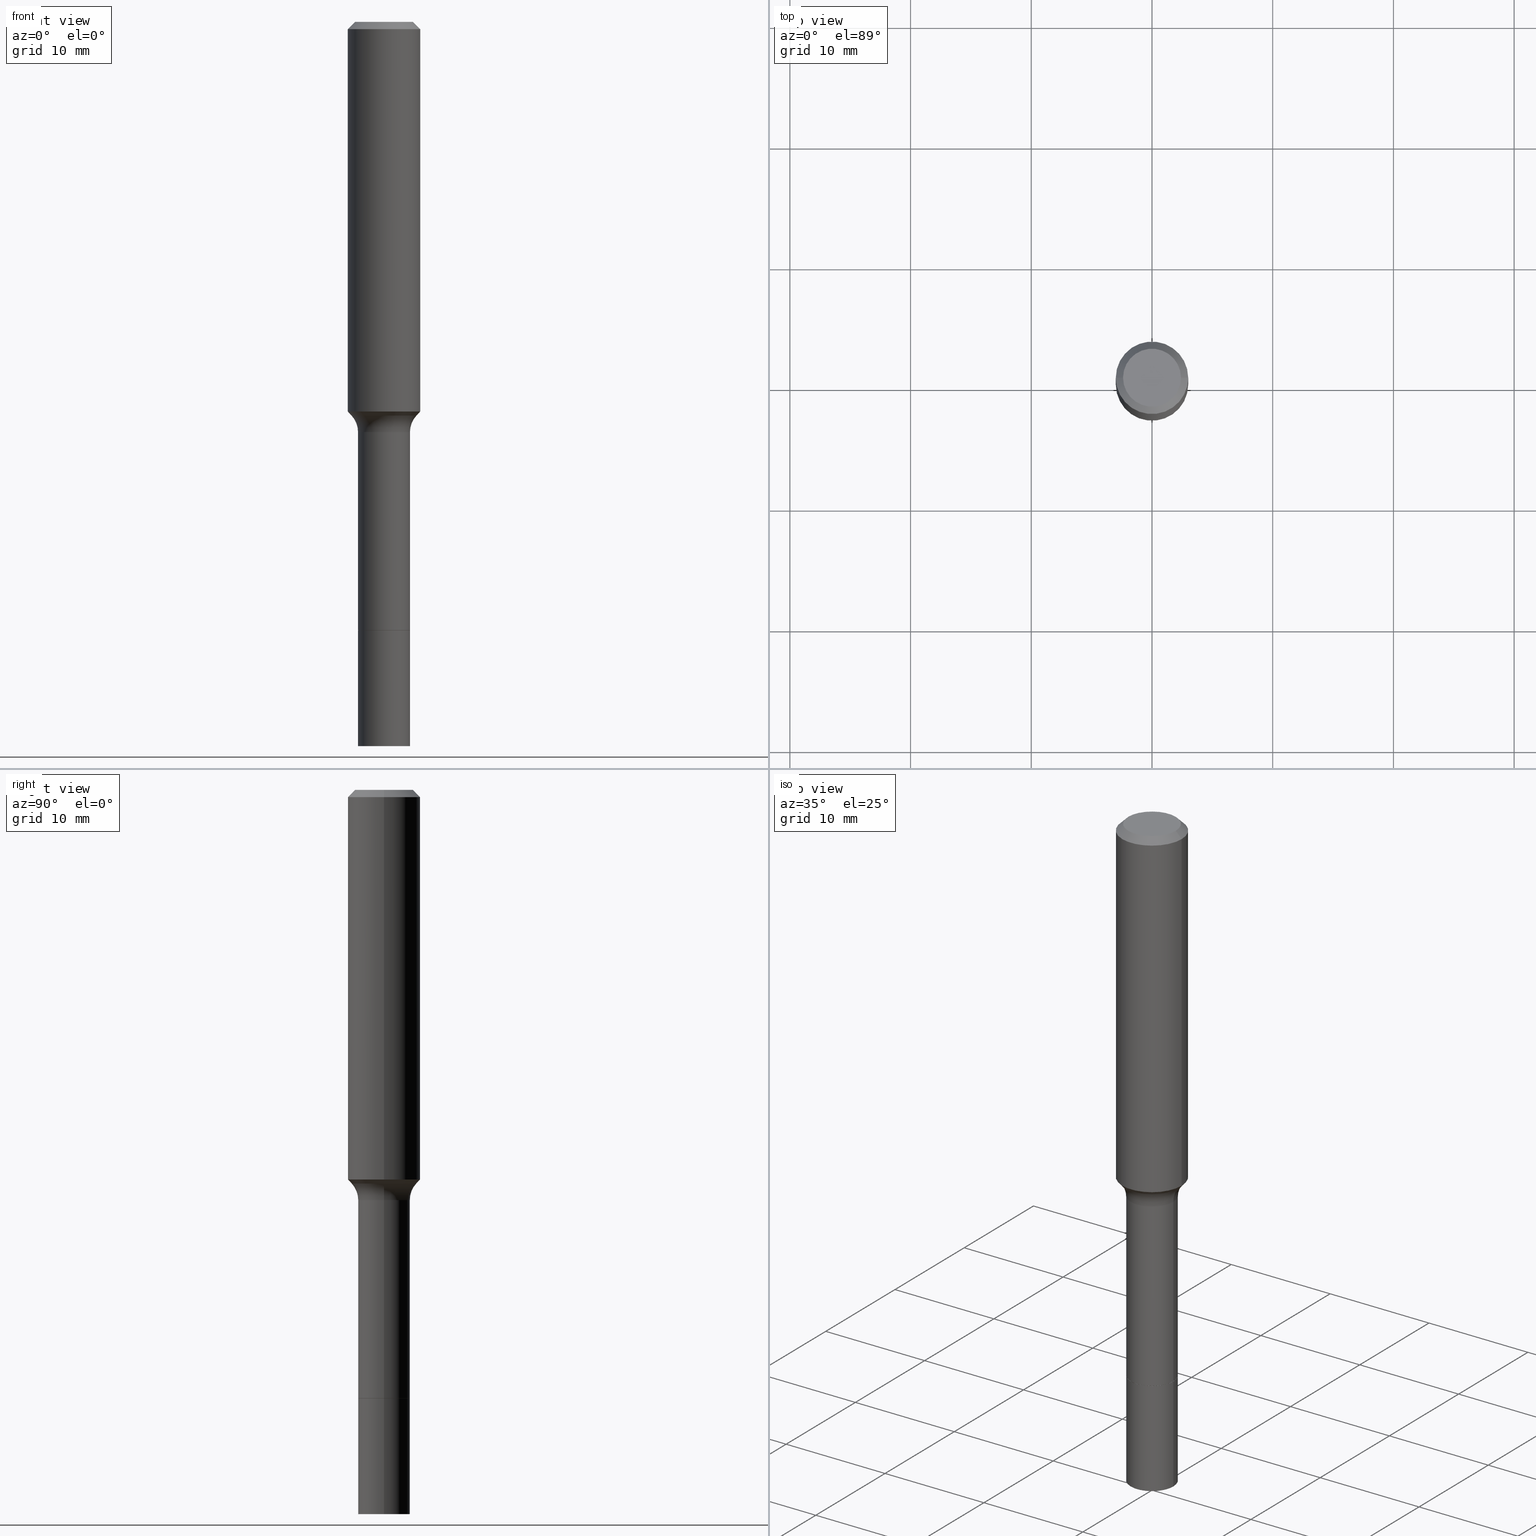
[diagram: canonical four-view strip — front | top / right | iso, engineering-drawing reading convention]
A machine part, canonical four-view strip (front | top / right | iso — engineering-drawing reading convention). The complete STEP part file that produces these views, byte-faithful:
ISO-10303-21;
HEADER;
FILE_DESCRIPTION (( 'STEP AP203' ),
    '1' );
FILE_NAME ('67088.STEP',
    '2025-04-01T15:28:05',
    ( '' ),
    ( '' ),
    'SwSTEP 2.0',
    'SolidWorks 2024',
    '' );
FILE_SCHEMA (( 'CONFIG_CONTROL_DESIGN' ));
ENDSEC;

DATA;
#1 = DIRECTION ( 'NONE',  ( -2.445468806185136597E-29, 3.491481338843145583E-15, 1.000000000000000000 ) ) ;
#2 = ORIENTED_EDGE ( 'NONE', *, *, #66, .F. ) ;
#3 = VERTEX_POINT ( 'NONE', #330 ) ;
#4 = DIRECTION ( 'NONE',  ( 0.000000000000000000, 0.000000000000000000, 1.000000000000000000 ) ) ;
#5 = AXIS2_PLACEMENT_3D ( 'NONE', #475, #42, #46 ) ;
#6 = CONICAL_SURFACE ( 'NONE', #84, 0.1061417038704659255, 0.7504915783575827337 ) ;
#7 = ORIENTED_EDGE ( 'NONE', *, *, #429, .F. ) ;
#8 = ORIENTED_EDGE ( 'NONE', *, *, #9, .T. ) ;
#9 = EDGE_CURVE ( 'NONE', #409, #245, #240, .T. ) ;
#10 = FACE_OUTER_BOUND ( 'NONE', #446, .T. ) ;
#11 = SECURITY_CLASSIFICATION ( '', '', #189 ) ;
#12 = DIRECTION ( 'NONE',  ( 1.000000000000000000, -6.982962677686266711E-15, 4.876176775795935232E-29 ) ) ;
#13 = CALENDAR_DATE ( 2025, 1, 4 ) ;
#14 = DIRECTION ( 'NONE',  ( -2.445468806185136877E-29, 3.491481338843145188E-15, 1.000000000000000000 ) ) ;
#15 = EDGE_CURVE ( 'NONE', #497, #3, #338, .T. ) ;
#16 = LINE ( 'NONE', #92, #406 ) ;
#17 = DIRECTION ( 'NONE',  ( -2.445468806185136877E-29, 3.491481338843145188E-15, 1.000000000000000000 ) ) ;
#18 =( CONVERSION_BASED_UNIT ( 'INCH', #469 ) LENGTH_UNIT ( ) NAMED_UNIT ( #408 ) );
#19 = CIRCLE ( 'NONE', #316, 0.08465000000000001690 ) ;
#20 = CARTESIAN_POINT ( 'NONE',  ( 3.139101899204768444E-29, -4.481805563857509473E-15, -1.283640131194999867 ) ) ;
#21 = FACE_OUTER_BOUND ( 'NONE', #120, .T. ) ;
#22 = PRODUCT_DEFINITION ( 'UNKNOWN', '', #191, #410 ) ;
#23 =( LENGTH_UNIT ( ) NAMED_UNIT ( * ) SI_UNIT ( $, .METRE. ) );
#24 = LOCAL_TIME ( 11, 28, 5.000000000000000000, #105 ) ;
#25 = DIRECTION ( 'NONE',  ( -2.445468806185136597E-29, 3.491481338843145583E-15, 1.000000000000000000 ) ) ;
#26 = CARTESIAN_POINT ( 'NONE',  ( -0.08464999999999997526, 6.014744258209246316E-16, -4.163878553900776454E-30 ) ) ;
#27 = AXIS2_PLACEMENT_3D ( 'NONE', #372, #94, #182 ) ;
#28 = DIRECTION ( 'NONE',  ( -1.000000000000000000, 6.982962677686266711E-15, 0.000000000000000000 ) ) ;
#29 = TOROIDAL_SURFACE ( 'NONE', #493, 0.1646499999999999075, 0.08000000000000007105 ) ;
#30 = EDGE_CURVE ( 'NONE', #245, #409, #134, .T. ) ;
#31 = PERSON_AND_ORGANIZATION_ROLE ( 'design_supplier' ) ;
#32 = DIRECTION ( 'NONE',  ( 1.000000000000000000, -6.982962677686267499E-15, 4.875432709231658792E-29 ) ) ;
#33 = DIRECTION ( 'NONE',  ( -2.438088387897960049E-29, 3.491481338843145188E-15, 1.000000000000000000 ) ) ;
#34 = FACE_OUTER_BOUND ( 'NONE', #324, .T. ) ;
#35 = CARTESIAN_POINT ( 'NONE',  ( -0.08464999999999991975, -5.197701503930597829E-15, -1.338200000000000056 ) ) ;
#36 = CC_DESIGN_APPROVAL ( #194, ( #191 ) ) ;
#37 = CALENDAR_DATE ( 2025, 1, 4 ) ;
#38 = CARTESIAN_POINT ( 'NONE',  ( 3.107741934530071514E-29, -4.437031845553863878E-15, -1.270816428600478609 ) ) ;
#39 = LINE ( 'NONE', #26, #436 ) ;
#40 = CIRCLE ( 'NONE', #5, 0.08465000000000014180 ) ;
#41 = ORIENTED_EDGE ( 'NONE', *, *, #217, .F. ) ;
#42 = DIRECTION ( 'NONE',  ( -2.445468806185136597E-29, 3.491481338843145583E-15, 1.000000000000000000 ) ) ;
#43 = ORIENTED_EDGE ( 'NONE', *, *, #479, .F. ) ;
#44 = EDGE_CURVE ( 'NONE', #166, #73, #296, .T. ) ;
#45 = ORIENTED_EDGE ( 'NONE', *, *, #285, .T. ) ;
#46 = DIRECTION ( 'NONE',  ( 1.000000000000000000, -6.982962677686270655E-15, 0.000000000000000000 ) ) ;
#47 = EDGE_LOOP ( 'NONE', ( #188, #247, #335, #367 ) ) ;
#48 = VECTOR ( 'NONE', #17, 39.37007874015748143 ) ;
#49 = CONICAL_SURFACE ( 'NONE', #345, 0.1180999999999999966, 0.7853981633974461696 ) ;
#50 = CC_DESIGN_DATE_AND_TIME_ASSIGNMENT ( #348, #508, ( #22 ) ) ;
#51 = VERTEX_POINT ( 'NONE', #455 ) ;
#52 = LINE ( 'NONE', #332, #322 ) ;
#53 = DIRECTION ( 'NONE',  ( -2.445468806185136597E-29, 3.491481338843145583E-15, 1.000000000000000000 ) ) ;
#54 = PERSON_AND_ORGANIZATION ( #293, #503 ) ;
#55 = DIRECTION ( 'NONE',  ( -1.000000000000000000, 6.982962677686265922E-15, -4.876176775795935793E-29 ) ) ;
#56 = ORIENTED_EDGE ( 'NONE', *, *, #386, .F. ) ;
#57 = EDGE_CURVE ( 'NONE', #51, #447, #253, .T. ) ;
#58 = DIRECTION ( 'NONE',  ( 1.000000000000000000, -6.982962677686266711E-15, 0.000000000000000000 ) ) ;
#59 = DIRECTION ( 'NONE',  ( -2.445468806185136877E-29, 3.491481338843145188E-15, 1.000000000000000000 ) ) ;
#60 = CARTESIAN_POINT ( 'NONE',  ( 0.08465000000000001690, -7.518905063198713271E-15, -1.984200000000000186 ) ) ;
#61 = CIRCLE ( 'NONE', #153, 0.1180999999999999966 ) ;
#62 = ADVANCED_FACE ( 'NONE', ( #219 ), #204, .T. ) ;
#63 = CARTESIAN_POINT ( 'NONE',  ( 3.272526356436949336E-29, -4.672300327639896745E-15, -1.338200000000000056 ) ) ;
#64 = CIRCLE ( 'NONE', #206, 0.1181000000000001493 ) ;
#65 = DIRECTION ( 'NONE',  ( 1.000000000000000000, -6.982962677686269077E-15, 0.000000000000000000 ) ) ;
#66 = EDGE_CURVE ( 'NONE', #447, #3, #61, .T. ) ;
#67 = VECTOR ( 'NONE', #473, 39.37007874015748143 ) ;
#68 = CALENDAR_DATE ( 2025, 1, 4 ) ;
#69 = DIRECTION ( 'NONE',  ( 1.000000000000000000, -6.982962677686266711E-15, 4.876176775795936353E-29 ) ) ;
#70 = CARTESIAN_POINT ( 'NONE',  ( 5.776686413970529753E-29, -8.247577218615279626E-15, -2.362200000000000077 ) ) ;
#71 = LINE ( 'NONE', #382, #452 ) ;
#72 = DIRECTION ( 'NONE',  ( -2.445468806185136597E-29, 3.491481338843145583E-15, 1.000000000000000000 ) ) ;
#73 = VERTEX_POINT ( 'NONE', #173 ) ;
#74 = AXIS2_PLACEMENT_3D ( 'NONE', #177, #301, #465 ) ;
#75 = ORIENTED_EDGE ( 'NONE', *, *, #157, .F. ) ;
#76 = EDGE_LOOP ( 'NONE', ( #8, #489, #363, #56 ) ) ;
#77 = ORIENTED_EDGE ( 'NONE', *, *, #263, .F. ) ;
#78 = CC_DESIGN_SECURITY_CLASSIFICATION ( #11, ( #191 ) ) ;
#79 = ADVANCED_FACE ( 'NONE', ( #371 ), #210, .T. ) ;
#80 = CARTESIAN_POINT ( 'NONE',  ( 7.545787641473140628E-46, -1.077338491108201769E-31, -3.085620075131671975E-17 ) ) ;
#81 = ORIENTED_EDGE ( 'NONE', *, *, #513, .T. ) ;
#82 = AXIS2_PLACEMENT_3D ( 'NONE', #70, #430, #387 ) ;
#83 = AXIS2_PLACEMENT_3D ( 'NONE', #63, #193, #353 ) ;
#84 = AXIS2_PLACEMENT_3D ( 'NONE', #476, #340, #115 ) ;
#85 = ORIENTED_EDGE ( 'NONE', *, *, #172, .F. ) ;
#86 = PERSON_AND_ORGANIZATION ( #293, #503 ) ;
#87 = CARTESIAN_POINT ( 'NONE',  ( 4.851076470829456161E-29, -6.926051531863148571E-15, -1.983700000000000241 ) ) ;
#88 = CARTESIAN_POINT ( 'NONE',  ( 0.08464999999999997526, -5.911077906661423090E-16, 4.127683640711257810E-30 ) ) ;
#89 = VERTEX_POINT ( 'NONE', #60 ) ;
#90 = AXIS2_PLACEMENT_3D ( 'NONE', #433, #156, #187 ) ;
#91 = DIRECTION ( 'NONE',  ( -2.445468806185136597E-29, 3.491481338843145583E-15, 1.000000000000000000 ) ) ;
#92 = CARTESIAN_POINT ( 'NONE',  ( -0.08465000000000007241, -6.326322846711644457E-15, -1.984200000000000186 ) ) ;
#93 = DATE_AND_TIME ( #308, #412 ) ;
#94 = DIRECTION ( 'NONE',  ( 2.438088387897960049E-29, -3.491481338843145188E-15, -1.000000000000000000 ) ) ;
#95 = DIRECTION ( 'NONE',  ( 2.438088387897960049E-29, -3.491481338843145188E-15, -1.000000000000000000 ) ) ;
#96 = CARTESIAN_POINT ( 'NONE',  ( 0.1646499999999999075, -5.822045132520940805E-15, -1.338200000000000056 ) ) ;
#97 = DIRECTION ( 'NONE',  ( 1.000000000000000000, -6.982962677686268288E-15, 0.000000000000000000 ) ) ;
#98 = APPROVAL_DATE_TIME ( #93, #232 ) ;
#99 = EDGE_CURVE ( 'NONE', #257, #246, #16, .T. ) ;
#100 = CARTESIAN_POINT ( 'NONE',  ( -0.08465000000000014180, -6.986212819752998050E-15, -2.362200000000000077 ) ) ;
#101 = CIRCLE ( 'NONE', #140, 0.09447999999999998066 ) ;
#102 = CARTESIAN_POINT ( 'NONE',  ( 3.272526356436949336E-29, -4.672300327639896745E-15, -1.338200000000000056 ) ) ;
#103 = DIRECTION ( 'NONE',  ( -2.445468806185136597E-29, 3.491481338843145583E-15, 1.000000000000000000 ) ) ;
#104 = CIRCLE ( 'NONE', #354, 0.1180999999999999966 ) ;
#105 = COORDINATED_UNIVERSAL_TIME_OFFSET ( 5, 0, .BEHIND. ) ;
#106 = DIRECTION ( 'NONE',  ( 1.000000000000000000, -6.982962677686264344E-15, 0.000000000000000000 ) ) ;
#107 = EDGE_CURVE ( 'NONE', #402, #214, #492, .T. ) ;
#108 = PRODUCT_DEFINITION_SHAPE ( 'NONE', 'NONE',  #22 ) ;
#109 = DIRECTION ( 'NONE',  ( 1.000000000000000000, -6.982962677686269077E-15, 0.000000000000000000 ) ) ;
#110 = APPROVAL_DATE_TIME ( #267, #194 ) ;
#111 = AXIS2_PLACEMENT_3D ( 'NONE', #20, #294, #97 ) ;
#112 = AXIS2_PLACEMENT_3D ( 'NONE', #184, #235, #69 ) ;
#113 = FACE_OUTER_BOUND ( 'NONE', #159, .T. ) ;
#114 = PERSON_AND_ORGANIZATION ( #293, #503 ) ;
#115 = DIRECTION ( 'NONE',  ( 1.000000000000000000, -6.982962677686268288E-15, 0.000000000000000000 ) ) ;
#116 = CYLINDRICAL_SURFACE ( 'NONE', #229, 0.08464999999999997526 ) ;
#117 = ADVANCED_FACE ( 'NONE', ( #511 ), #143, .T. ) ;
#118 = EDGE_LOOP ( 'NONE', ( #320, #400, #486, #282 ) ) ;
#119 = CIRCLE ( 'NONE', #424, 0.08465000000000001690 ) ;
#120 = EDGE_LOOP ( 'NONE', ( #152, #286, #259, #326 ) ) ;
#121 = AXIS2_PLACEMENT_3D ( 'NONE', #96, #437, #319 ) ;
#122 = ORIENTED_EDGE ( 'NONE', *, *, #131, .F. ) ;
#123 = ADVANCED_FACE ( 'NONE', ( #113 ), #49, .T. ) ;
#124 = ORIENTED_EDGE ( 'NONE', *, *, #211, .F. ) ;
#125 = APPROVAL_PERSON_ORGANIZATION ( #54, #232, #180 ) ;
#126 = VERTEX_POINT ( 'NONE', #35 ) ;
#127 = PERSON_AND_ORGANIZATION ( #293, #503 ) ;
#128 = CARTESIAN_POINT ( 'NONE',  ( 0.09447999999999998066, -7.704367267948738690E-16, -3.085620075131172158E-17 ) ) ;
#129 = ORIENTED_EDGE ( 'NONE', *, *, #479, .T. ) ;
#130 = DATE_AND_TIME ( #37, #271 ) ;
#131 = EDGE_CURVE ( 'NONE', #402, #298, #359, .T. ) ;
#132 = DIRECTION ( 'NONE',  ( -2.445468806185136597E-29, 3.491481338843145583E-15, 1.000000000000000000 ) ) ;
#133 = ORIENTED_EDGE ( 'NONE', *, *, #429, .T. ) ;
#134 = CIRCLE ( 'NONE', #111, 0.1061417038704659255 ) ;
#135 = DIRECTION ( 'NONE',  ( -2.445468806185136597E-29, 3.491481338843145583E-15, 1.000000000000000000 ) ) ;
#136 = CARTESIAN_POINT ( 'NONE',  ( 3.139101899204768444E-29, -4.481805563857509473E-15, -1.283640131194999867 ) ) ;
#137 = ADVANCED_FACE ( 'NONE', ( #302 ), #460, .F. ) ;
#138 = CIRCLE ( 'NONE', #342, 0.08465000000000001690 ) ;
#139 = FACE_OUTER_BOUND ( 'NONE', #241, .T. ) ;
#140 = AXIS2_PLACEMENT_3D ( 'NONE', #439, #435, #32 ) ;
#141 = ADVANCED_FACE ( 'NONE', ( #258 ), #385, .F. ) ;
#142 = PLANE ( 'NONE',  #82 ) ;
#143 = CYLINDRICAL_SURFACE ( 'NONE', #416, 0.1181000000000000660 ) ;
#144 = CARTESIAN_POINT ( 'NONE',  ( 0.1061417038704661614, -5.222989120531003037E-15, -1.283640131194999867 ) ) ;
#145 = CARTESIAN_POINT ( 'NONE',  ( -0.1061417038704661614, -3.727623397393914177E-15, -1.283640131194999867 ) ) ;
#146 = COORDINATED_UNIVERSAL_TIME_OFFSET ( 5, 0, .BEHIND. ) ;
#147 = DIRECTION ( 'NONE',  ( -1.000000000000000000, 7.105427357600997914E-15, 0.000000000000000000 ) ) ;
#148 = CARTESIAN_POINT ( 'NONE',  ( 0.08465000000000001690, -7.517159322529290979E-15, -1.983700000000000241 ) ) ;
#149 = APPROVAL_STATUS ( 'not_yet_approved' ) ;
#150 = LINE ( 'NONE', #314, #264 ) ;
#151 = DIRECTION ( 'NONE',  ( -2.445468806185136877E-29, 3.491481338843145188E-15, 1.000000000000000000 ) ) ;
#152 = ORIENTED_EDGE ( 'NONE', *, *, #30, .F. ) ;
#153 = AXIS2_PLACEMENT_3D ( 'NONE', #419, #169, #58 ) ;
#154 = CONICAL_SURFACE ( 'NONE', #407, 0.1180999999999999966, 0.7853981633974461696 ) ;
#155 = CARTESIAN_POINT ( 'NONE',  ( -0.09447999999999998066, 7.009847083995354710E-16, -3.085620075132147757E-17 ) ) ;
#156 = DIRECTION ( 'NONE',  ( -2.445468806185136597E-29, 3.491481338843145583E-15, 1.000000000000000000 ) ) ;
#157 = EDGE_CURVE ( 'NONE', #214, #126, #39, .T. ) ;
#158 = ORIENTED_EDGE ( 'NONE', *, *, #496, .F. ) ;
#159 = EDGE_LOOP ( 'NONE', ( #7, #45, #485, #43 ) ) ;
#160 = ADVANCED_FACE ( 'NONE', ( #472 ), #490, .T. ) ;
#161 = CONICAL_SURFACE ( 'NONE', #315, 0.08415000000000000258, 0.7853981633972775267 ) ;
#162 = ORIENTED_EDGE ( 'NONE', *, *, #461, .F. ) ;
#163 = ORIENTED_EDGE ( 'NONE', *, *, #99, .T. ) ;
#164 = ORIENTED_EDGE ( 'NONE', *, *, #263, .T. ) ;
#165 = DIRECTION ( 'NONE',  ( -0.7071067811865460184, 2.468850131082241283E-15, -0.7071067811865490160 ) ) ;
#166 = VERTEX_POINT ( 'NONE', #148 ) ;
#167 = EDGE_CURVE ( 'NONE', #51, #497, #466, .T. ) ;
#168 = APPROVAL_ROLE ( '' ) ;
#169 = DIRECTION ( 'NONE',  ( -2.445468806185136597E-29, 3.491481338843145583E-15, 1.000000000000000000 ) ) ;
#170 = CARTESIAN_POINT ( 'NONE',  ( 0.1181000000000000660, -8.246878922347485584E-16, 5.758764772215003944E-30 ) ) ;
#171 = CARTESIAN_POINT ( 'NONE',  ( -0.08465000000000001690, -5.197701503930597040E-15, -1.983700000000000241 ) ) ;
#172 = EDGE_CURVE ( 'NONE', #257, #287, #275, .T. ) ;
#173 = CARTESIAN_POINT ( 'NONE',  ( 0.08464999999999991975, -5.263408118306038364E-15, -1.338200000000000056 ) ) ;
#174 = AXIS2_PLACEMENT_3D ( 'NONE', #305, #103, #350 ) ;
#175 = AXIS2_PLACEMENT_3D ( 'NONE', #181, #509, #147 ) ;
#176 = ORIENTED_EDGE ( 'NONE', *, *, #331, .T. ) ;
#177 = CARTESIAN_POINT ( 'NONE',  ( 4.852299205232548402E-29, -6.927797272532570075E-15, -1.984200000000000186 ) ) ;
#178 = CARTESIAN_POINT ( 'NONE',  ( 4.852299205232548402E-29, -6.927797272532570075E-15, -1.984200000000000186 ) ) ;
#179 = DIRECTION ( 'NONE',  ( -2.445468806185136597E-29, 3.491481338843145583E-15, 1.000000000000000000 ) ) ;
#180 = APPROVAL_ROLE ( '' ) ;
#181 = CARTESIAN_POINT ( 'NONE',  ( -0.1646499999999999075, -3.502391713210892446E-15, -1.338200000000000056 ) ) ;
#182 = DIRECTION ( 'NONE',  ( -1.000000000000000000, 6.982962677686265922E-15, -4.876176775795935793E-29 ) ) ;
#183 = CARTESIAN_POINT ( 'NONE',  ( 4.851076470829456161E-29, -6.926051531863148571E-15, -1.983700000000000241 ) ) ;
#184 = CARTESIAN_POINT ( 'NONE',  ( 0.000000000000000000, 0.000000000000000000, 0.000000000000000000 ) ) ;
#185 = CARTESIAN_POINT ( 'NONE',  ( 3.107741934530071514E-29, -4.437031845553863878E-15, -1.270816428600478609 ) ) ;
#186 = DIRECTION ( 'NONE',  ( 1.000000000000000000, -6.982962677686263555E-15, 0.000000000000000000 ) ) ;
#187 = DIRECTION ( 'NONE',  ( 1.000000000000000000, -6.982962677686263555E-15, 0.000000000000000000 ) ) ;
#188 = ORIENTED_EDGE ( 'NONE', *, *, #15, .F. ) ;
#189 = SECURITY_CLASSIFICATION_LEVEL ( 'unclassified' ) ;
#190 = DIRECTION ( 'NONE',  ( 2.445468806185136597E-29, -3.491481338843145583E-15, -1.000000000000000000 ) ) ;
#191 = PRODUCT_DEFINITION_FORMATION_WITH_SPECIFIED_SOURCE ( 'ANY', '', #236, .NOT_KNOWN. ) ;
#192 = CALENDAR_DATE ( 2025, 1, 4 ) ;
#193 = DIRECTION ( 'NONE',  ( -2.445468806185136597E-29, 3.491481338843145583E-15, 1.000000000000000000 ) ) ;
#194 = APPROVAL ( #149, 'UNSPECIFIED' ) ;
#195 = AXIS2_PLACEMENT_3D ( 'NONE', #450, #53, #252 ) ;
#196 = DIRECTION ( 'NONE',  ( 1.000000000000000000, -6.982962677686264344E-15, 0.000000000000000000 ) ) ;
#197 = ORIENTED_EDGE ( 'NONE', *, *, #445, .T. ) ;
#198 = ORIENTED_EDGE ( 'NONE', *, *, #441, .T. ) ;
#199 = ADVANCED_FACE ( 'NONE', ( #265 ), #116, .T. ) ;
#200 = ORIENTED_EDGE ( 'NONE', *, *, #99, .F. ) ;
#201 = MECHANICAL_CONTEXT ( 'NONE', #256, 'mechanical' ) ;
#202 = MANIFOLD_SOLID_BREP ( 'Body-Move/Copy2[2]', #390 ) ;
#203 = ADVANCED_BREP_SHAPE_REPRESENTATION ( '67088', ( #373, #202, #269 ), #376 ) ;
#204 = CONICAL_SURFACE ( 'NONE', #195, 0.1061417038704659255, 0.7504915783575827337 ) ;
#205 = ORIENTED_EDGE ( 'NONE', *, *, #131, .T. ) ;
#206 = AXIS2_PLACEMENT_3D ( 'NONE', #38, #317, #106 ) ;
#207 = EDGE_LOOP ( 'NONE', ( #494, #163, #468, #500 ) ) ;
#208 = DIRECTION ( 'NONE',  ( 1.000000000000000000, 0.000000000000000000, 0.000000000000000000 ) ) ;
#209 = CARTESIAN_POINT ( 'NONE',  ( 3.272526356436949336E-29, -4.672300327639896745E-15, -1.338200000000000056 ) ) ;
#210 = CYLINDRICAL_SURFACE ( 'NONE', #401, 0.08464999999999997526 ) ;
#211 = EDGE_CURVE ( 'NONE', #287, #257, #40, .T. ) ;
#212 = CC_DESIGN_APPROVAL ( #454, ( #11 ) ) ;
#213 = DIRECTION ( 'NONE',  ( 1.000000000000000000, -6.982962677686269077E-15, 0.000000000000000000 ) ) ;
#214 = VERTEX_POINT ( 'NONE', #171 ) ;
#215 = VECTOR ( 'NONE', #425, 39.37007874015748143 ) ;
#216 = VERTEX_POINT ( 'NONE', #128 ) ;
#217 = EDGE_CURVE ( 'NONE', #166, #214, #306, .T. ) ;
#218 = CARTESIAN_POINT ( 'NONE',  ( 0.1180999999999999966, -9.071566814582237199E-16, -0.02362000000000014435 ) ) ;
#219 = FACE_OUTER_BOUND ( 'NONE', #502, .T. ) ;
#220 = DIRECTION ( 'NONE',  ( -2.445468806185136877E-29, 3.491481338843145188E-15, 1.000000000000000000 ) ) ;
#221 = CLOSED_SHELL ( 'NONE', ( #255, #243, #420, #491 ) ) ;
#222 = TOROIDAL_SURFACE ( 'NONE', #501, 0.1646499999999999075, 0.08000000000000007105 ) ;
#223 = DIRECTION ( 'NONE',  ( -2.445468806185136877E-29, 3.491481338843145188E-15, 1.000000000000000000 ) ) ;
#224 = DIRECTION ( 'NONE',  ( -2.445468806185136597E-29, 3.491481338843145583E-15, 1.000000000000000000 ) ) ;
#225 = CARTESIAN_POINT ( 'NONE',  ( 4.852299205232548402E-29, -6.927797272532570075E-15, -1.984200000000000186 ) ) ;
#226 = ADVANCED_FACE ( 'NONE', ( #351 ), #161, .T. ) ;
#227 = PERSON_AND_ORGANIZATION ( #293, #503 ) ;
#228 = DIRECTION ( 'NONE',  ( -2.445468806185136597E-29, 3.491481338843145583E-15, 1.000000000000000000 ) ) ;
#229 = AXIS2_PLACEMENT_3D ( 'NONE', #428, #344, #311 ) ;
#230 = FACE_OUTER_BOUND ( 'NONE', #207, .T. ) ;
#231 = APPROVAL_ROLE ( '' ) ;
#232 = APPROVAL ( #366, 'UNSPECIFIED' ) ;
#233 = CARTESIAN_POINT ( 'NONE',  ( -0.08465000000000001690, -6.986212819752998838E-15, -1.984200000000000186 ) ) ;
#234 = PERSON_AND_ORGANIZATION ( #293, #503 ) ;
#235 = DIRECTION ( 'NONE',  ( -2.445468806185136597E-29, 3.491481338843145583E-15, 1.000000000000000000 ) ) ;
#236 = PRODUCT ( '67088', '67088', '', ( #201 ) ) ;
#237 = LOCAL_TIME ( 11, 28, 5.000000000000000000, #327 ) ;
#238 = CARTESIAN_POINT ( 'NONE',  ( 3.542150508699133947E-30, -1.336930979663076594E-14, -1.984200000000000186 ) ) ;
#239 = ORIENTED_EDGE ( 'NONE', *, *, #513, .F. ) ;
#240 = CIRCLE ( 'NONE', #329, 0.1061417038704659255 ) ;
#241 = EDGE_LOOP ( 'NONE', ( #200, #442, #333, #239 ) ) ;
#242 =( NAMED_UNIT ( * ) SI_UNIT ( $, .STERADIAN. ) SOLID_ANGLE_UNIT ( ) );
#243 = ADVANCED_FACE ( 'NONE', ( #34 ), #142, .T. ) ;
#244 = CIRCLE ( 'NONE', #391, 0.08464999999999991975 ) ;
#245 = VERTEX_POINT ( 'NONE', #145 ) ;
#246 = VERTEX_POINT ( 'NONE', #233 ) ;
#247 = ORIENTED_EDGE ( 'NONE', *, *, #399, .T. ) ;
#248 = SHAPE_DEFINITION_REPRESENTATION ( #108, #203 ) ;
#249 = CC_DESIGN_DATE_AND_TIME_ASSIGNMENT ( #130, #415, ( #11 ) ) ;
#250 = EDGE_LOOP ( 'NONE', ( #440, #122 ) ) ;
#251 = APPROVAL_DATE_TIME ( #418, #454 ) ;
#252 = DIRECTION ( 'NONE',  ( 1.000000000000000000, -6.982962677686268288E-15, 0.000000000000000000 ) ) ;
#253 = LINE ( 'NONE', #170, #378 ) ;
#254 = CYLINDRICAL_SURFACE ( 'NONE', #74, 0.08465000000000007241 ) ;
#255 = ADVANCED_FACE ( 'NONE', ( #230 ), #254, .T. ) ;
#256 = APPLICATION_CONTEXT ( 'configuration controlled 3d designs of mechanical parts and assemblies' ) ;
#257 = VERTEX_POINT ( 'NONE', #100 ) ;
#258 = FACE_OUTER_BOUND ( 'NONE', #250, .T. ) ;
#259 = ORIENTED_EDGE ( 'NONE', *, *, #484, .T. ) ;
#260 = LOCAL_TIME ( 11, 28, 5.000000000000000000, #146 ) ;
#261 = APPROVAL_PERSON_ORGANIZATION ( #86, #454, #168 ) ;
#262 = CARTESIAN_POINT ( 'NONE',  ( -0.08415000000000000258, -6.327226333216334943E-15, -1.984200000000000408 ) ) ;
#263 = EDGE_CURVE ( 'NONE', #280, #216, #101, .T. ) ;
#264 = VECTOR ( 'NONE', #223, 39.37007874015748143 ) ;
#265 = FACE_OUTER_BOUND ( 'NONE', #443, .T. ) ;
#266 = EDGE_LOOP ( 'NONE', ( #336, #377, #41, #518 ) ) ;
#267 = DATE_AND_TIME ( #68, #260 ) ;
#268 = CARTESIAN_POINT ( 'NONE',  ( 4.852299205232548402E-29, -6.927797272532570075E-15, -1.984200000000000186 ) ) ;
#269 = AXIS2_PLACEMENT_3D ( 'NONE', #483, #4, #208 ) ;
#270 = DIRECTION ( 'NONE',  ( 1.000000000000000000, -6.982962677686263555E-15, 0.000000000000000000 ) ) ;
#271 = LOCAL_TIME ( 11, 28, 5.000000000000000000, #396 ) ;
#272 = PERSON_AND_ORGANIZATION_ROLE ( 'creator' ) ;
#273 = CARTESIAN_POINT ( 'NONE',  ( 4.852299205232548963E-29, -6.927797272532570864E-15, -1.984200000000000408 ) ) ;
#274 = APPLICATION_PROTOCOL_DEFINITION ( 'international standard', 'config_control_design', 1994, #256 ) ;
#275 = CIRCLE ( 'NONE', #174, 0.08465000000000014180 ) ;
#276 = CC_DESIGN_PERSON_AND_ORGANIZATION_ASSIGNMENT ( #127, #451, ( #236 ) ) ;
#277 = AXIS2_PLACEMENT_3D ( 'NONE', #185, #228, #196 ) ;
#278 = CARTESIAN_POINT ( 'NONE',  ( 5.776197320209328408E-31, -8.246878922347560526E-17, -0.02362000000000014435 ) ) ;
#279 = PERSON_AND_ORGANIZATION_ROLE ( 'classification_officer' ) ;
#280 = VERTEX_POINT ( 'NONE', #155 ) ;
#281 = CIRCLE ( 'NONE', #121, 0.08000000000000007105 ) ;
#282 = ORIENTED_EDGE ( 'NONE', *, *, #44, .F. ) ;
#283 = CIRCLE ( 'NONE', #337, 0.08415000000000000258 ) ;
#284 = APPLICATION_CONTEXT ( 'configuration controlled 3d designs of mechanical parts and assemblies' ) ;
#285 = EDGE_CURVE ( 'NONE', #216, #447, #389, .T. ) ;
#286 = ORIENTED_EDGE ( 'NONE', *, *, #361, .T. ) ;
#287 = VERTEX_POINT ( 'NONE', #304 ) ;
#288 = ORIENTED_EDGE ( 'NONE', *, *, #107, .F. ) ;
#289 = ADVANCED_FACE ( 'NONE', ( #427 ), #154, .T. ) ;
#290 = VECTOR ( 'NONE', #220, 39.37007874015748143 ) ;
#291 = EDGE_LOOP ( 'NONE', ( #487, #81 ) ) ;
#292 = LINE ( 'NONE', #375, #426 ) ;
#293 = PERSON ( 'UNSPECIFIED', 'UNSPECIFIED', 'UNSPECIFIED', ('UNSPECIFIED'), ('UNSPECIFIED'), ('UNSPECIFIED') ) ;
#294 = DIRECTION ( 'NONE',  ( -2.445468806185136597E-29, 3.491481338843145583E-15, 1.000000000000000000 ) ) ;
#295 = EDGE_CURVE ( 'NONE', #298, #402, #283, .T. ) ;
#296 = LINE ( 'NONE', #88, #48 ) ;
#297 = DIRECTION ( 'NONE',  ( -2.445468806185136597E-29, 3.491481338843145583E-15, 1.000000000000000000 ) ) ;
#298 = VERTEX_POINT ( 'NONE', #349 ) ;
#299 = DIRECTION ( 'NONE',  ( 1.000000000000000000, -6.982962677686265133E-15, 0.000000000000000000 ) ) ;
#300 = ORIENTED_EDGE ( 'NONE', *, *, #484, .F. ) ;
#301 = DIRECTION ( 'NONE',  ( -2.445468806185136597E-29, 3.491481338843145583E-15, 1.000000000000000000 ) ) ;
#302 = FACE_OUTER_BOUND ( 'NONE', #358, .T. ) ;
#303 = CC_DESIGN_PERSON_AND_ORGANIZATION_ASSIGNMENT ( #227, #272, ( #22 ) ) ;
#304 = CARTESIAN_POINT ( 'NONE',  ( 0.08465000000000014180, -8.838685009281422034E-15, -2.362200000000000077 ) ) ;
#305 = CARTESIAN_POINT ( 'NONE',  ( 5.776686413970529753E-29, -8.247577218615279626E-15, -2.362200000000000077 ) ) ;
#306 = CIRCLE ( 'NONE', #448, 0.08465000000000001690 ) ;
#307 =( NAMED_UNIT ( * ) PLANE_ANGLE_UNIT ( ) SI_UNIT ( $, .RADIAN. ) );
#308 = CALENDAR_DATE ( 2025, 1, 4 ) ;
#309 = CYLINDRICAL_SURFACE ( 'NONE', #516, 0.08465000000000007241 ) ;
#310 = FACE_OUTER_BOUND ( 'NONE', #76, .T. ) ;
#311 = DIRECTION ( 'NONE',  ( 1.000000000000000000, -6.982962677686266711E-15, 4.876176775795935232E-29 ) ) ;
#312 = EDGE_CURVE ( 'NONE', #89, #246, #19, .T. ) ;
#313 = CARTESIAN_POINT ( 'NONE',  ( 4.852299205232548963E-29, -6.927797272532570864E-15, -1.984200000000000408 ) ) ;
#314 = CARTESIAN_POINT ( 'NONE',  ( 0.08465000000000007241, -7.518905063198713271E-15, -1.984200000000000186 ) ) ;
#315 = AXIS2_PLACEMENT_3D ( 'NONE', #313, #480, #270 ) ;
#316 = AXIS2_PLACEMENT_3D ( 'NONE', #225, #352, #65 ) ;
#317 = DIRECTION ( 'NONE',  ( -2.445468806185136597E-29, 3.491481338843145583E-15, 1.000000000000000000 ) ) ;
#318 = ORIENTED_EDGE ( 'NONE', *, *, #285, .F. ) ;
#319 = DIRECTION ( 'NONE',  ( 1.000000000000000000, -6.982962677686265922E-15, 0.000000000000000000 ) ) ;
#320 = ORIENTED_EDGE ( 'NONE', *, *, #217, .T. ) ;
#321 = EDGE_LOOP ( 'NONE', ( #444, #380, #2, #405 ) ) ;
#322 = VECTOR ( 'NONE', #165, 39.37007874015748143 ) ;
#323 = DIRECTION ( 'NONE',  ( 1.000000000000000000, -6.982962677686264344E-15, 0.000000000000000000 ) ) ;
#324 = EDGE_LOOP ( 'NONE', ( #124, #85 ) ) ;
#325 = EDGE_CURVE ( 'NONE', #73, #126, #449, .T. ) ;
#326 = ORIENTED_EDGE ( 'NONE', *, *, #441, .F. ) ;
#327 = COORDINATED_UNIVERSAL_TIME_OFFSET ( 5, 0, .BEHIND. ) ;
#328 = CARTESIAN_POINT ( 'NONE',  ( 3.272526356436949336E-29, -4.672300327639896745E-15, -1.338200000000000056 ) ) ;
#329 = AXIS2_PLACEMENT_3D ( 'NONE', #136, #132, #464 ) ;
#330 = CARTESIAN_POINT ( 'NONE',  ( -0.1180999999999999966, -1.420599346455990485E-15, -0.02362000000000014435 ) ) ;
#331 = EDGE_CURVE ( 'NONE', #298, #166, #512, .T. ) ;
#332 = CARTESIAN_POINT ( 'NONE',  ( -0.1180999999999999966, 7.422191030112725094E-16, -0.02362000000000014435 ) ) ;
#333 = ORIENTED_EDGE ( 'NONE', *, *, #369, .T. ) ;
#334 = DIRECTION ( 'NONE',  ( -0.6819983600625137976, 7.399397606724344952E-15, 0.7313537016191561380 ) ) ;
#335 = ORIENTED_EDGE ( 'NONE', *, *, #57, .T. ) ;
#336 = ORIENTED_EDGE ( 'NONE', *, *, #295, .T. ) ;
#337 = AXIS2_PLACEMENT_3D ( 'NONE', #273, #394, #186 ) ;
#338 = LINE ( 'NONE', #411, #290 ) ;
#339 = CC_DESIGN_PERSON_AND_ORGANIZATION_ASSIGNMENT ( #114, #279, ( #11 ) ) ;
#340 = DIRECTION ( 'NONE',  ( -2.445468806185136597E-29, 3.491481338843145583E-15, 1.000000000000000000 ) ) ;
#341 = UNCERTAINTY_MEASURE_WITH_UNIT (LENGTH_MEASURE( 1.000000000000000082E-05 ), #18, 'distance_accuracy_value', 'NONE');
#342 = AXIS2_PLACEMENT_3D ( 'NONE', #87, #456, #213 ) ;
#343 = DIRECTION ( 'NONE',  ( 0.7071067811864267805, -2.468850131080992517E-15, 0.7071067811866682540 ) ) ;
#344 = DIRECTION ( 'NONE',  ( -2.445468806185136597E-29, 3.491481338843145583E-15, 1.000000000000000000 ) ) ;
#345 = AXIS2_PLACEMENT_3D ( 'NONE', #278, #438, #395 ) ;
#346 = ADVANCED_FACE ( 'NONE', ( #467 ), #481, .T. ) ;
#347 = AXIS2_PLACEMENT_3D ( 'NONE', #80, #398, #517 ) ;
#348 = DATE_AND_TIME ( #192, #24 ) ;
#349 = CARTESIAN_POINT ( 'NONE',  ( 0.08415000000000000258, -7.515413581859870264E-15, -1.984200000000000408 ) ) ;
#350 = DIRECTION ( 'NONE',  ( 1.000000000000000000, -6.982962677686270655E-15, 0.000000000000000000 ) ) ;
#351 = FACE_OUTER_BOUND ( 'NONE', #362, .T. ) ;
#352 = DIRECTION ( 'NONE',  ( -2.445468806185136597E-29, 3.491481338843145583E-15, 1.000000000000000000 ) ) ;
#353 = DIRECTION ( 'NONE',  ( 1.000000000000000000, -6.982962677686265133E-15, 0.000000000000000000 ) ) ;
#354 = AXIS2_PLACEMENT_3D ( 'NONE', #463, #135, #488 ) ;
#355 = ORIENTED_EDGE ( 'NONE', *, *, #386, .T. ) ;
#356 = PRODUCT_RELATED_PRODUCT_CATEGORY ( 'detail', '', ( #236 ) ) ;
#357 = ORIENTED_EDGE ( 'NONE', *, *, #496, .T. ) ;
#358 = EDGE_LOOP ( 'NONE', ( #164, #133 ) ) ;
#359 = CIRCLE ( 'NONE', #458, 0.08415000000000000258 ) ;
#360 = CARTESIAN_POINT ( 'NONE',  ( 4.852299205232548963E-29, -6.927797272532570864E-15, -1.984200000000000408 ) ) ;
#361 = EDGE_CURVE ( 'NONE', #245, #126, #381, .T. ) ;
#362 = EDGE_LOOP ( 'NONE', ( #288, #205, #176, #158 ) ) ;
#363 = ORIENTED_EDGE ( 'NONE', *, *, #167, .F. ) ;
#364 = DIRECTION ( 'NONE',  ( 1.000000000000000000, -6.982962677686268288E-15, 4.883557194083113462E-29 ) ) ;
#365 = DIRECTION ( 'NONE',  ( -2.445468806185136597E-29, 3.491481338843145583E-15, 1.000000000000000000 ) ) ;
#366 = APPROVAL_STATUS ( 'not_yet_approved' ) ;
#367 = ORIENTED_EDGE ( 'NONE', *, *, #445, .F. ) ;
#368 = APPLICATION_PROTOCOL_DEFINITION ( 'international standard', 'config_control_design', 1994, #284 ) ;
#369 = EDGE_CURVE ( 'NONE', #287, #89, #150, .T. ) ;
#370 = CIRCLE ( 'NONE', #347, 0.09447999999999998066 ) ;
#371 = FACE_OUTER_BOUND ( 'NONE', #118, .T. ) ;
#372 = CARTESIAN_POINT ( 'NONE',  ( 3.772893820736570314E-46, -5.386692455541008845E-32, -1.542810037565835988E-17 ) ) ;
#373 = MANIFOLD_SOLID_BREP ( 'Body-Move/Copy2[1]', #221 ) ;
#374 = APPROVAL_STATUS ( 'not_yet_approved' ) ;
#375 = CARTESIAN_POINT ( 'NONE',  ( -0.1061417038704659255, -3.727623397393916544E-15, -1.283640131194999867 ) ) ;
#376 =( GEOMETRIC_REPRESENTATION_CONTEXT ( 3 ) GLOBAL_UNCERTAINTY_ASSIGNED_CONTEXT ( ( #341 ) ) GLOBAL_UNIT_ASSIGNED_CONTEXT ( ( #18, #307, #242 ) ) REPRESENTATION_CONTEXT ( 'NONE', 'WORKASPACE' ) );
#377 = ORIENTED_EDGE ( 'NONE', *, *, #107, .T. ) ;
#378 = VECTOR ( 'NONE', #14, 39.37007874015748143 ) ;
#379 = ADVANCED_FACE ( 'NONE', ( #310 ), #6, .T. ) ;
#380 = ORIENTED_EDGE ( 'NONE', *, *, #15, .T. ) ;
#381 = CIRCLE ( 'NONE', #175, 0.08000000000000007105 ) ;
#382 = CARTESIAN_POINT ( 'NONE',  ( 0.1061417038704659255, -5.222989120531000671E-15, -1.283640131194999867 ) ) ;
#383 = DIRECTION ( 'NONE',  ( 1.000000000000000000, -6.982962677686269077E-15, 0.000000000000000000 ) ) ;
#384 = CARTESIAN_POINT ( 'NONE',  ( 5.776197320209328408E-31, -8.246878922347560526E-17, -0.02362000000000014435 ) ) ;
#385 = PLANE ( 'NONE',  #499 ) ;
#386 = EDGE_CURVE ( 'NONE', #409, #51, #71, .T. ) ;
#387 = DIRECTION ( 'NONE',  ( -1.000000000000000000, 6.982962677686265922E-15, -4.876176775795935793E-29 ) ) ;
#388 = CARTESIAN_POINT ( 'NONE',  ( 0.000000000000000000, 0.000000000000000000, 0.000000000000000000 ) ) ;
#389 = LINE ( 'NONE', #471, #215 ) ;
#390 = CLOSED_SHELL ( 'NONE', ( #160, #123, #346, #379, #404, #79, #199, #470, #62, #117, #289, #137, #141, #226 ) ) ;
#391 = AXIS2_PLACEMENT_3D ( 'NONE', #328, #297, #299 ) ;
#392 = CARTESIAN_POINT ( 'NONE',  ( -0.08415000000000000258, -6.329875560390446933E-15, -1.984200000000000408 ) ) ;
#393 = PERSON_AND_ORGANIZATION ( #293, #503 ) ;
#394 = DIRECTION ( 'NONE',  ( -2.445468806185136597E-29, 3.491481338843145583E-15, 1.000000000000000000 ) ) ;
#395 = DIRECTION ( 'NONE',  ( -1.000000000000000000, 6.982962677686266711E-15, 0.000000000000000000 ) ) ;
#396 = COORDINATED_UNIVERSAL_TIME_OFFSET ( 5, 0, .BEHIND. ) ;
#397 = DIRECTION ( 'NONE',  ( 0.6819983600625137976, -2.208861293262632392E-15, 0.7313537016191561380 ) ) ;
#398 = DIRECTION ( 'NONE',  ( -2.445468806185136597E-29, 3.491481338843145583E-15, 1.000000000000000000 ) ) ;
#399 = EDGE_CURVE ( 'NONE', #497, #51, #64, .T. ) ;
#400 = ORIENTED_EDGE ( 'NONE', *, *, #157, .T. ) ;
#401 = AXIS2_PLACEMENT_3D ( 'NONE', #422, #365, #12 ) ;
#402 = VERTEX_POINT ( 'NONE', #262 ) ;
#403 = ORIENTED_EDGE ( 'NONE', *, *, #44, .T. ) ;
#404 = ADVANCED_FACE ( 'NONE', ( #21 ), #222, .F. ) ;
#405 = ORIENTED_EDGE ( 'NONE', *, *, #57, .F. ) ;
#406 = VECTOR ( 'NONE', #59, 39.37007874015748143 ) ;
#407 = AXIS2_PLACEMENT_3D ( 'NONE', #384, #190, #28 ) ;
#408 = DIMENSIONAL_EXPONENTS ( 1.000000000000000000, 0.000000000000000000, 0.000000000000000000, 0.000000000000000000, 0.000000000000000000, 0.000000000000000000, 0.000000000000000000 ) ;
#409 = VERTEX_POINT ( 'NONE', #144 ) ;
#410 = DESIGN_CONTEXT ( 'detailed design', #284, 'design' ) ;
#411 = CARTESIAN_POINT ( 'NONE',  ( -0.1181000000000000660, 8.391509709326787887E-16, -5.809262341591047287E-30 ) ) ;
#412 = LOCAL_TIME ( 11, 28, 5.000000000000000000, #504 ) ;
#413 = ORIENTED_EDGE ( 'NONE', *, *, #325, .T. ) ;
#414 = CC_DESIGN_PERSON_AND_ORGANIZATION_ASSIGNMENT ( #393, #431, ( #191 ) ) ;
#415 = DATE_TIME_ROLE ( 'classification_date' ) ;
#416 = AXIS2_PLACEMENT_3D ( 'NONE', #388, #507, #434 ) ;
#417 = EDGE_LOOP ( 'NONE', ( #318, #77, #129, #197 ) ) ;
#418 = DATE_AND_TIME ( #13, #237 ) ;
#419 = CARTESIAN_POINT ( 'NONE',  ( 5.776197320209328408E-31, -8.246878922347560526E-17, -0.02362000000000014435 ) ) ;
#420 = ADVANCED_FACE ( 'NONE', ( #139 ), #309, .T. ) ;
#421 = CC_DESIGN_APPROVAL ( #232, ( #22 ) ) ;
#422 = CARTESIAN_POINT ( 'NONE',  ( 0.000000000000000000, 0.000000000000000000, 0.000000000000000000 ) ) ;
#423 = DIRECTION ( 'NONE',  ( 1.000000000000000000, -6.982962677686263555E-15, 0.000000000000000000 ) ) ;
#424 = AXIS2_PLACEMENT_3D ( 'NONE', #178, #224, #383 ) ;
#425 = DIRECTION ( 'NONE',  ( 0.7071067811865460184, -7.319954787623251312E-15, -0.7071067811865490160 ) ) ;
#426 = VECTOR ( 'NONE', #334, 39.37007874015748854 ) ;
#427 = FACE_OUTER_BOUND ( 'NONE', #417, .T. ) ;
#428 = CARTESIAN_POINT ( 'NONE',  ( 0.000000000000000000, 0.000000000000000000, 0.000000000000000000 ) ) ;
#429 = EDGE_CURVE ( 'NONE', #216, #280, #370, .T. ) ;
#430 = DIRECTION ( 'NONE',  ( 2.438088387897960049E-29, -3.491481338843145188E-15, -1.000000000000000000 ) ) ;
#431 = PERSON_AND_ORGANIZATION_ROLE ( 'creator' ) ;
#432 = APPROVAL_PERSON_ORGANIZATION ( #234, #194, #231 ) ;
#433 = CARTESIAN_POINT ( 'NONE',  ( 4.852299205232548963E-29, -6.927797272532570864E-15, -1.984200000000000408 ) ) ;
#434 = DIRECTION ( 'NONE',  ( 1.000000000000000000, -6.982962677686266711E-15, 4.876176775795936353E-29 ) ) ;
#435 = DIRECTION ( 'NONE',  ( -2.445468806185136597E-29, 3.491481338843145583E-15, 1.000000000000000000 ) ) ;
#436 = VECTOR ( 'NONE', #151, 39.37007874015748143 ) ;
#437 = DIRECTION ( 'NONE',  ( -6.982962677686266711E-15, -1.000000000000000000, 3.491481338843145583E-15 ) ) ;
#438 = DIRECTION ( 'NONE',  ( 2.445468806185136597E-29, -3.491481338843145583E-15, -1.000000000000000000 ) ) ;
#439 = CARTESIAN_POINT ( 'NONE',  ( 7.545787641473140628E-46, -1.077338491108201769E-31, -3.085620075131671975E-17 ) ) ;
#440 = ORIENTED_EDGE ( 'NONE', *, *, #295, .F. ) ;
#441 = EDGE_CURVE ( 'NONE', #409, #73, #281, .T. ) ;
#442 = ORIENTED_EDGE ( 'NONE', *, *, #172, .T. ) ;
#443 = EDGE_LOOP ( 'NONE', ( #75, #357, #403, #300 ) ) ;
#444 = ORIENTED_EDGE ( 'NONE', *, *, #167, .T. ) ;
#445 = EDGE_CURVE ( 'NONE', #3, #447, #104, .T. ) ;
#446 = EDGE_LOOP ( 'NONE', ( #457, #459, #198, #413 ) ) ;
#447 = VERTEX_POINT ( 'NONE', #218 ) ;
#448 = AXIS2_PLACEMENT_3D ( 'NONE', #183, #179, #109 ) ;
#449 = CIRCLE ( 'NONE', #83, 0.08464999999999991975 ) ;
#450 = CARTESIAN_POINT ( 'NONE',  ( 3.139101899204768444E-29, -4.481805563857509473E-15, -1.283640131194999867 ) ) ;
#451 = PERSON_AND_ORGANIZATION_ROLE ( 'design_owner' ) ;
#452 = VECTOR ( 'NONE', #397, 39.37007874015748854 ) ;
#453 = FACE_OUTER_BOUND ( 'NONE', #291, .T. ) ;
#454 = APPROVAL ( #374, 'UNSPECIFIED' ) ;
#455 = CARTESIAN_POINT ( 'NONE',  ( 0.1181000000000001493, -5.261719737788613718E-15, -1.270816428600478609 ) ) ;
#456 = DIRECTION ( 'NONE',  ( -2.445468806185136597E-29, 3.491481338843145583E-15, 1.000000000000000000 ) ) ;
#457 = ORIENTED_EDGE ( 'NONE', *, *, #361, .F. ) ;
#458 = AXIS2_PLACEMENT_3D ( 'NONE', #360, #1, #423 ) ;
#459 = ORIENTED_EDGE ( 'NONE', *, *, #9, .F. ) ;
#460 = PLANE ( 'NONE',  #27 ) ;
#461 = EDGE_CURVE ( 'NONE', #245, #497, #292, .T. ) ;
#462 = AXIS2_PLACEMENT_3D ( 'NONE', #498, #95, #55 ) ;
#463 = CARTESIAN_POINT ( 'NONE',  ( 5.776197320209328408E-31, -8.246878922347560526E-17, -0.02362000000000014435 ) ) ;
#464 = DIRECTION ( 'NONE',  ( 1.000000000000000000, -6.982962677686268288E-15, 0.000000000000000000 ) ) ;
#465 = DIRECTION ( 'NONE',  ( 1.000000000000000000, -6.982962677686264344E-15, 0.000000000000000000 ) ) ;
#466 = CIRCLE ( 'NONE', #277, 0.1181000000000001493 ) ;
#467 = FACE_OUTER_BOUND ( 'NONE', #321, .T. ) ;
#468 = ORIENTED_EDGE ( 'NONE', *, *, #312, .F. ) ;
#469 = LENGTH_MEASURE_WITH_UNIT ( LENGTH_MEASURE( 0.02539999999999999897 ), #23 );
#470 = ADVANCED_FACE ( 'NONE', ( #10 ), #29, .F. ) ;
#471 = CARTESIAN_POINT ( 'NONE',  ( 0.1180999999999999966, -8.926936027602933910E-16, -0.02362000000000014435 ) ) ;
#472 = FACE_OUTER_BOUND ( 'NONE', #266, .T. ) ;
#473 = DIRECTION ( 'NONE',  ( -0.7071067811864267805, 7.493145998869918709E-15, 0.7071067811866682540 ) ) ;
#474 = PERSON_AND_ORGANIZATION ( #293, #503 ) ;
#475 = CARTESIAN_POINT ( 'NONE',  ( 5.776686413970529753E-29, -8.247577218615279626E-15, -2.362200000000000077 ) ) ;
#476 = CARTESIAN_POINT ( 'NONE',  ( 3.139101899204768444E-29, -4.481805563857509473E-15, -1.283640131194999867 ) ) ;
#477 = ORIENTED_EDGE ( 'NONE', *, *, #399, .F. ) ;
#478 = VECTOR ( 'NONE', #343, 39.37007874015748143 ) ;
#479 = EDGE_CURVE ( 'NONE', #280, #3, #52, .T. ) ;
#480 = DIRECTION ( 'NONE',  ( -2.445468806185136597E-29, 3.491481338843145583E-15, 1.000000000000000000 ) ) ;
#481 = CYLINDRICAL_SURFACE ( 'NONE', #112, 0.1181000000000000660 ) ;
#482 = ORIENTED_EDGE ( 'NONE', *, *, #30, .T. ) ;
#483 = CARTESIAN_POINT ( 'NONE',  ( 0.000000000000000000, 0.000000000000000000, 0.000000000000000000 ) ) ;
#484 = EDGE_CURVE ( 'NONE', #126, #73, #244, .T. ) ;
#485 = ORIENTED_EDGE ( 'NONE', *, *, #66, .T. ) ;
#486 = ORIENTED_EDGE ( 'NONE', *, *, #325, .F. ) ;
#487 = ORIENTED_EDGE ( 'NONE', *, *, #312, .T. ) ;
#488 = DIRECTION ( 'NONE',  ( 1.000000000000000000, -6.982962677686266711E-15, 0.000000000000000000 ) ) ;
#489 = ORIENTED_EDGE ( 'NONE', *, *, #461, .T. ) ;
#490 = CONICAL_SURFACE ( 'NONE', #90, 0.08415000000000000258, 0.7853981633972775267 ) ;
#491 = ADVANCED_FACE ( 'NONE', ( #453 ), #495, .F. ) ;
#492 = LINE ( 'NONE', #392, #67 ) ;
#493 = AXIS2_PLACEMENT_3D ( 'NONE', #209, #91, #364 ) ;
#494 = ORIENTED_EDGE ( 'NONE', *, *, #211, .T. ) ;
#495 = PLANE ( 'NONE',  #462 ) ;
#496 = EDGE_CURVE ( 'NONE', #214, #166, #138, .T. ) ;
#497 = VERTEX_POINT ( 'NONE', #510 ) ;
#498 = CARTESIAN_POINT ( 'NONE',  ( 4.852299205232548402E-29, -6.927797272532570075E-15, -1.984200000000000186 ) ) ;
#499 = AXIS2_PLACEMENT_3D ( 'NONE', #238, #33, #515 ) ;
#500 = ORIENTED_EDGE ( 'NONE', *, *, #369, .F. ) ;
#501 = AXIS2_PLACEMENT_3D ( 'NONE', #102, #25, #506 ) ;
#502 = EDGE_LOOP ( 'NONE', ( #162, #482, #355, #477 ) ) ;
#503 = ORGANIZATION ( 'UNSPECIFIED', 'UNSPECIFIED', '' ) ;
#504 = COORDINATED_UNIVERSAL_TIME_OFFSET ( 5, 0, .BEHIND. ) ;
#505 = CC_DESIGN_PERSON_AND_ORGANIZATION_ASSIGNMENT ( #474, #31, ( #191 ) ) ;
#506 = DIRECTION ( 'NONE',  ( 1.000000000000000000, -6.982962677686268288E-15, 4.883557194083113462E-29 ) ) ;
#507 = DIRECTION ( 'NONE',  ( -2.445468806185136597E-29, 3.491481338843145583E-15, 1.000000000000000000 ) ) ;
#508 = DATE_TIME_ROLE ( 'creation_date' ) ;
#509 = DIRECTION ( 'NONE',  ( 7.105427357601001859E-15, 1.000000000000000000, -3.491481338843145583E-15 ) ) ;
#510 = CARTESIAN_POINT ( 'NONE',  ( -0.1181000000000001493, -3.597880874621184103E-15, -1.270816428600478609 ) ) ;
#511 = FACE_OUTER_BOUND ( 'NONE', #47, .T. ) ;
#512 = LINE ( 'NONE', #514, #478 ) ;
#513 = EDGE_CURVE ( 'NONE', #246, #89, #119, .T. ) ;
#514 = CARTESIAN_POINT ( 'NONE',  ( 0.08415000000000000258, -7.515413581859870264E-15, -1.984200000000000408 ) ) ;
#515 = DIRECTION ( 'NONE',  ( 1.000000000000000000, -6.982962677686265922E-15, 4.876176775795935793E-29 ) ) ;
#516 = AXIS2_PLACEMENT_3D ( 'NONE', #268, #72, #323 ) ;
#517 = DIRECTION ( 'NONE',  ( 1.000000000000000000, -6.982962677686267499E-15, 4.875432709231658792E-29 ) ) ;
#518 = ORIENTED_EDGE ( 'NONE', *, *, #331, .F. ) ;
ENDSEC;
END-ISO-10303-21;
